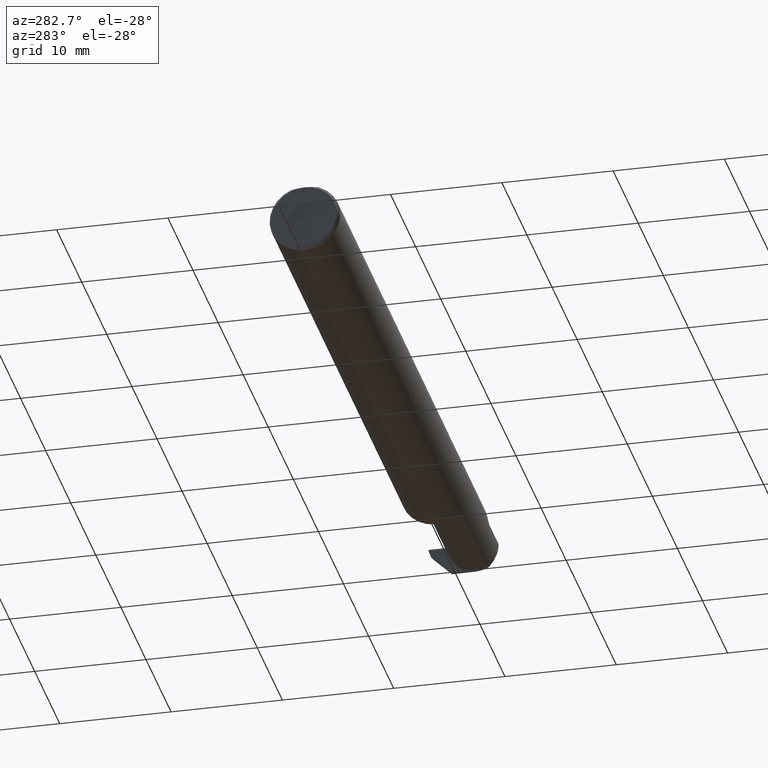
[diagram: clean part render]
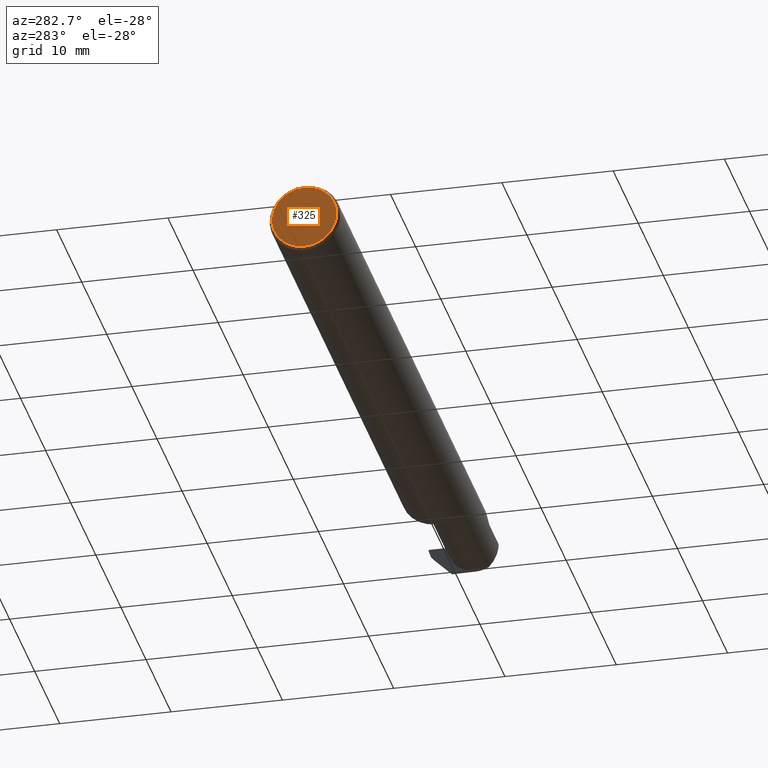
[diagram: same view with one face highlighted and labeled with its STEP entity id]
A machine part, auxiliary view. The second image highlights one B-rep face of the part: STEP entity #325.
In plain terms, the highlighted planar face has unit normal (1, 0, 0).
Its self-contained STEP definition (entity closure, byte-faithful):
#18 = EDGE_CURVE ( 'NONE', #452, #495, #387, .T. ) ;
#40 = CARTESIAN_POINT ( 'NONE',  ( 0.000000000000000000, 0.000000000000000000, 0.000000000000000000 ) ) ;
#73 = DIRECTION ( 'NONE',  ( -1.000000000000000000, -0.000000000000000000, -0.000000000000000000 ) ) ;
#95 = PLANE ( 'NONE',  #657 ) ;
#102 = CARTESIAN_POINT ( 'NONE',  ( 0.000000000000000000, 0.000000000000000000, 0.000000000000000000 ) ) ;
#146 = CIRCLE ( 'NONE', #270, 0.1149999999999997274 ) ;
#196 = ORIENTED_EDGE ( 'NONE', *, *, #645, .T. ) ;
#242 = CARTESIAN_POINT ( 'NONE',  ( 0.000000000000000000, 3.414809992080329023E-17, 0.1149999999999999217 ) ) ;
#270 = AXIS2_PLACEMENT_3D ( 'NONE', #40, #363, #476 ) ;
#284 = ORIENTED_EDGE ( 'NONE', *, *, #18, .T. ) ;
#304 = DIRECTION ( 'NONE',  ( 1.000000000000000000, 0.000000000000000000, 0.000000000000000000 ) ) ;
#325 = ADVANCED_FACE ( 'NONE', ( #609 ), #95, .F. ) ;
#348 = CARTESIAN_POINT ( 'NONE',  ( 0.000000000000000000, 0.000000000000000000, 0.000000000000000000 ) ) ;
#363 = DIRECTION ( 'NONE',  ( -1.000000000000000000, -0.000000000000000000, -0.000000000000000000 ) ) ;
#387 = CIRCLE ( 'NONE', #580, 0.1149999999999997274 ) ;
#422 = DIRECTION ( 'NONE',  ( 0.000000000000000000, 0.000000000000000000, -1.000000000000000000 ) ) ;
#424 = EDGE_LOOP ( 'NONE', ( #284, #196 ) ) ;
#452 = VERTEX_POINT ( 'NONE', #242 ) ;
#468 = CARTESIAN_POINT ( 'NONE',  ( 0.000000000000000000, 0.000000000000000000, -0.1149999999999997274 ) ) ;
#476 = DIRECTION ( 'NONE',  ( 0.000000000000000000, 0.000000000000000000, -1.000000000000000000 ) ) ;
#495 = VERTEX_POINT ( 'NONE', #468 ) ;
#580 = AXIS2_PLACEMENT_3D ( 'NONE', #348, #73, #666 ) ;
#609 = FACE_OUTER_BOUND ( 'NONE', #424, .T. ) ;
#645 = EDGE_CURVE ( 'NONE', #495, #452, #146, .T. ) ;
#657 = AXIS2_PLACEMENT_3D ( 'NONE', #102, #304, #422 ) ;
#666 = DIRECTION ( 'NONE',  ( 0.000000000000000000, 0.000000000000000000, -1.000000000000000000 ) ) ;